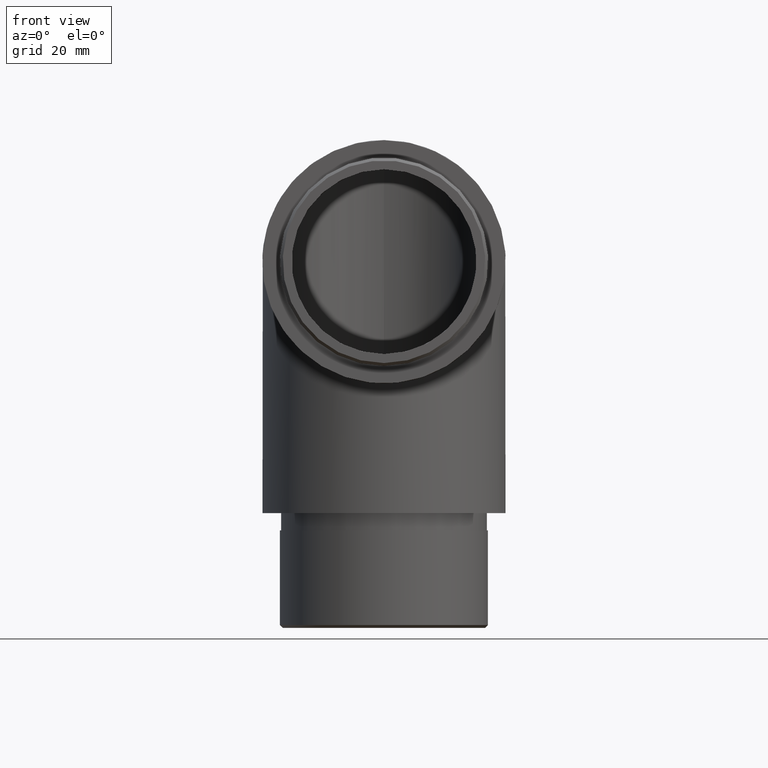
[diagram: clean part render]
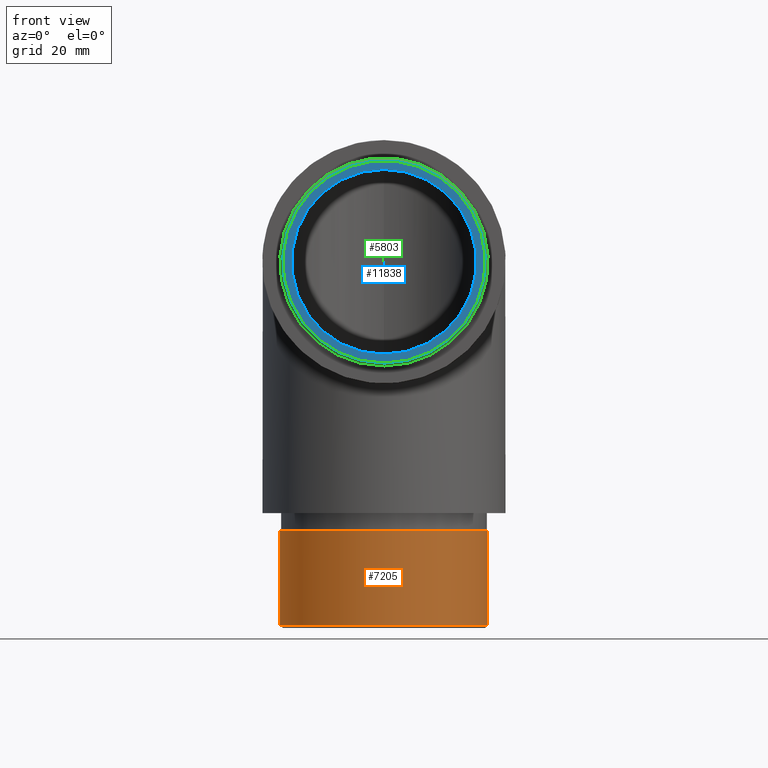
[diagram: same view with three faces highlighted in distinct colors, each labeled with its STEP entity id]
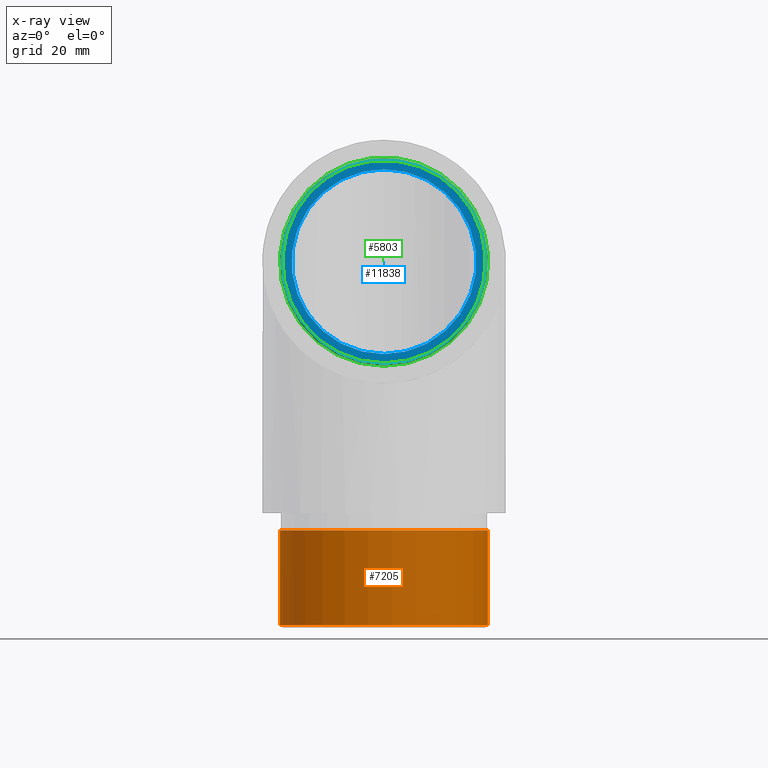
[diagram: x-ray of the same camera — body ghosted, the three highlighted faces saturated]
A machine part, front view with three faces highlighted in distinct colors.
The next image is the same camera in x-ray (body ghosted, the three faces saturated) — at least one of them is partly hidden behind the body in this view.
Their STEP definitions:

[orange] entity #7205 — the highlighted cylindrical surface (bore or boss wall) has radius 18.15 mm, axis along (-0, 0, 1).
#243 = AXIS2_PLACEMENT_3D ( 'NONE', #8819, #2137, #8000 ) ;
#1046 = CYLINDRICAL_SURFACE ( 'NONE', #243, 18.14999999999999900 ) ;
#2137 = DIRECTION ( 'NONE',  ( -0.0000000000000000000, 3.386180225106727800E-015, 1.000000000000000000 ) ) ;
#2856 = CIRCLE ( 'NONE', #4903, 18.14999999999999900 ) ;
#4609 = EDGE_LOOP ( 'NONE', ( #6044 ) ) ;
#4628 = VERTEX_POINT ( 'NONE', #10333 ) ;
#4639 = CARTESIAN_POINT ( 'NONE',  ( -18.14999999999999900, 43.79999999999979100, -63.29999999999999700 ) ) ;
#4903 = AXIS2_PLACEMENT_3D ( 'NONE', #11276, #11976, #10066 ) ;
#5631 = EDGE_CURVE ( 'NONE', #12063, #12063, #2856, .T. ) ;
#6014 = DIRECTION ( 'NONE',  ( 0.0000000000000000000, 1.000000000000000000, -3.440773836648212600E-015 ) ) ;
#6044 = ORIENTED_EDGE ( 'NONE', *, *, #8151, .T. ) ;
#6781 = EDGE_LOOP ( 'NONE', ( #8276 ) ) ;
#7019 = CARTESIAN_POINT ( 'NONE',  ( 0.0000000000000000000, 43.79999999999984800, -46.79999999999999700 ) ) ;
#7039 = AXIS2_PLACEMENT_3D ( 'NONE', #7019, #10867, #6014 ) ;
#7205 = ADVANCED_FACE ( 'NONE', ( #12362, #11013 ), #1046, .T. ) ;
#8000 = DIRECTION ( 'NONE',  ( 0.0000000000000000000, -1.000000000000000000, 3.058465632576189100E-015 ) ) ;
#8151 = EDGE_CURVE ( 'NONE', #4628, #4628, #11921, .T. ) ;
#8276 = ORIENTED_EDGE ( 'NONE', *, *, #5631, .T. ) ;
#8819 = CARTESIAN_POINT ( 'NONE',  ( 0.0000000000000000000, 43.79999999999979100, -63.79999999999999700 ) ) ;
#10066 = DIRECTION ( 'NONE',  ( -1.000000000000000000, 0.0000000000000000000, 0.0000000000000000000 ) ) ;
#10333 = CARTESIAN_POINT ( 'NONE',  ( 0.0000000000000000000, 61.94999999999984700, -46.80000000000005400 ) ) ;
#10867 = DIRECTION ( 'NONE',  ( 0.0000000000000000000, -3.386180225106727400E-015, -1.000000000000000000 ) ) ;
#11013 = FACE_OUTER_BOUND ( 'NONE', #4609, .T. ) ;
#11276 = CARTESIAN_POINT ( 'NONE',  ( 0.0000000000000000000, 43.79999999999979100, -63.29999999999999700 ) ) ;
#11921 = CIRCLE ( 'NONE', #7039, 18.14999999999999900 ) ;
#11976 = DIRECTION ( 'NONE',  ( 0.0000000000000000000, 0.0000000000000000000, 1.000000000000000000 ) ) ;
#12063 = VERTEX_POINT ( 'NONE', #4639 ) ;
#12362 = FACE_OUTER_BOUND ( 'NONE', #6781, .T. ) ;

[blue] entity #11838 — the highlighted planar face has unit normal (0, -1, 0).
#834 = AXIS2_PLACEMENT_3D ( 'NONE', #10594, #2927, #2023 ) ;
#1017 = DIRECTION ( 'NONE',  ( 0.0000000000000000000, 0.0000000000000000000, -1.000000000000000000 ) ) ;
#1059 = EDGE_LOOP ( 'NONE', ( #4624 ) ) ;
#1723 = CARTESIAN_POINT ( 'NONE',  ( 0.0000000000000000000, -20.00000000000000000, -17.64999999999998400 ) ) ;
#2023 = DIRECTION ( 'NONE',  ( 0.0000000000000000000, 0.0000000000000000000, -1.000000000000000000 ) ) ;
#2068 = VERTEX_POINT ( 'NONE', #1723 ) ;
#2927 = DIRECTION ( 'NONE',  ( 0.0000000000000000000, -1.000000000000000000, 0.0000000000000000000 ) ) ;
#3614 = CIRCLE ( 'NONE', #834, 17.64999999999998400 ) ;
#3904 = PLANE ( 'NONE',  #7851 ) ;
#4145 = FACE_BOUND ( 'NONE', #10165, .T. ) ;
#4432 = AXIS2_PLACEMENT_3D ( 'NONE', #11642, #6784, #1017 ) ;
#4510 = CIRCLE ( 'NONE', #4432, 16.10000000000000100 ) ;
#4624 = ORIENTED_EDGE ( 'NONE', *, *, #5246, .T. ) ;
#5240 = EDGE_CURVE ( 'NONE', #9754, #9754, #4510, .T. ) ;
#5246 = EDGE_CURVE ( 'NONE', #2068, #2068, #3614, .T. ) ;
#5968 = CARTESIAN_POINT ( 'NONE',  ( 0.0000000000000000000, -20.00000000000000000, 0.0000000000000000000 ) ) ;
#6601 = CARTESIAN_POINT ( 'NONE',  ( 0.0000000000000000000, -20.00000000000000000, -16.10000000000000100 ) ) ;
#6784 = DIRECTION ( 'NONE',  ( 0.0000000000000000000, -1.000000000000000000, 0.0000000000000000000 ) ) ;
#7197 = FACE_OUTER_BOUND ( 'NONE', #1059, .T. ) ;
#7851 = AXIS2_PLACEMENT_3D ( 'NONE', #5968, #11691, #10736 ) ;
#9754 = VERTEX_POINT ( 'NONE', #6601 ) ;
#10165 = EDGE_LOOP ( 'NONE', ( #11435 ) ) ;
#10594 = CARTESIAN_POINT ( 'NONE',  ( 0.0000000000000000000, -20.00000000000000000, 0.0000000000000000000 ) ) ;
#10736 = DIRECTION ( 'NONE',  ( 0.0000000000000000000, -0.0000000000000000000, -1.000000000000000000 ) ) ;
#11435 = ORIENTED_EDGE ( 'NONE', *, *, #5240, .F. ) ;
#11642 = CARTESIAN_POINT ( 'NONE',  ( 0.0000000000000000000, -20.00000000000000000, 0.0000000000000000000 ) ) ;
#11691 = DIRECTION ( 'NONE',  ( 0.0000000000000000000, -1.000000000000000000, 0.0000000000000000000 ) ) ;
#11838 = ADVANCED_FACE ( 'NONE', ( #7197, #4145 ), #3904, .T. ) ;

[green] entity #5803 — the highlighted conical surface has half-angle 45 deg.
#759 = CARTESIAN_POINT ( 'NONE',  ( 0.0000000000000000000, -19.49999999999997900, -18.14999999999999900 ) ) ;
#834 = AXIS2_PLACEMENT_3D ( 'NONE', #10594, #2927, #2023 ) ;
#1052 = CIRCLE ( 'NONE', #3047, 18.14999999999999900 ) ;
#1222 = FACE_BOUND ( 'NONE', #12077, .T. ) ;
#1288 = CARTESIAN_POINT ( 'NONE',  ( 0.0000000000000000000, -19.49999999999997900, 0.0000000000000000000 ) ) ;
#1333 = DIRECTION ( 'NONE',  ( 0.0000000000000000000, 0.0000000000000000000, -1.000000000000000000 ) ) ;
#1723 = CARTESIAN_POINT ( 'NONE',  ( 0.0000000000000000000, -20.00000000000000000, -17.64999999999998400 ) ) ;
#2023 = DIRECTION ( 'NONE',  ( 0.0000000000000000000, 0.0000000000000000000, -1.000000000000000000 ) ) ;
#2068 = VERTEX_POINT ( 'NONE', #1723 ) ;
#2193 = EDGE_CURVE ( 'NONE', #9298, #9298, #1052, .T. ) ;
#2501 = AXIS2_PLACEMENT_3D ( 'NONE', #9781, #5958, #5909 ) ;
#2927 = DIRECTION ( 'NONE',  ( 0.0000000000000000000, -1.000000000000000000, 0.0000000000000000000 ) ) ;
#3047 = AXIS2_PLACEMENT_3D ( 'NONE', #1288, #6068, #1333 ) ;
#3130 = EDGE_LOOP ( 'NONE', ( #11614 ) ) ;
#3614 = CIRCLE ( 'NONE', #834, 17.64999999999998400 ) ;
#4959 = CONICAL_SURFACE ( 'NONE', #2501, 17.64999999999998400, 0.7853981633974415100 ) ;
#5246 = EDGE_CURVE ( 'NONE', #2068, #2068, #3614, .T. ) ;
#5803 = ADVANCED_FACE ( 'NONE', ( #12234, #1222 ), #4959, .T. ) ;
#5909 = DIRECTION ( 'NONE',  ( 0.0000000000000000000, 0.0000000000000000000, 1.000000000000000000 ) ) ;
#5958 = DIRECTION ( 'NONE',  ( 0.0000000000000000000, 1.000000000000000000, 0.0000000000000000000 ) ) ;
#6068 = DIRECTION ( 'NONE',  ( 0.0000000000000000000, 1.000000000000000000, 0.0000000000000000000 ) ) ;
#7165 = ORIENTED_EDGE ( 'NONE', *, *, #5246, .F. ) ;
#9298 = VERTEX_POINT ( 'NONE', #759 ) ;
#9781 = CARTESIAN_POINT ( 'NONE',  ( 0.0000000000000000000, -20.00000000000000000, 0.0000000000000000000 ) ) ;
#10594 = CARTESIAN_POINT ( 'NONE',  ( 0.0000000000000000000, -20.00000000000000000, 0.0000000000000000000 ) ) ;
#11614 = ORIENTED_EDGE ( 'NONE', *, *, #2193, .F. ) ;
#12077 = EDGE_LOOP ( 'NONE', ( #7165 ) ) ;
#12234 = FACE_OUTER_BOUND ( 'NONE', #3130, .T. ) ;